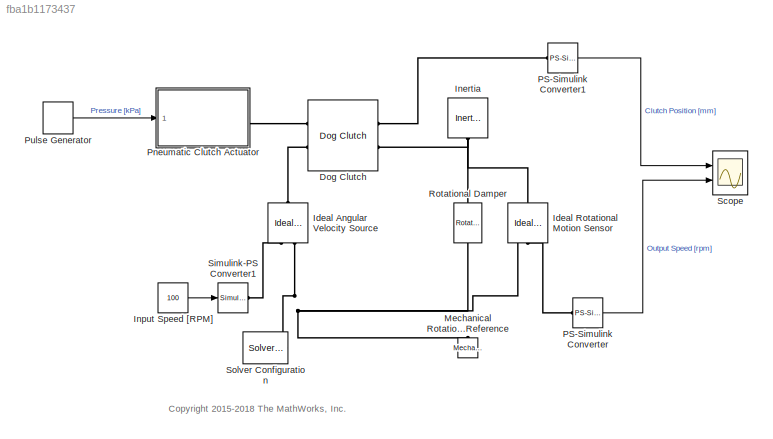
MODEL slx_fba1b1173437
KIND model
CONFIG AbsTol = 1e-3
CONFIG EnableMultiTasking = on
CONFIG FixedStep = auto
CONFIG MaxStep = auto
CONFIG MinStep = auto
CONFIG RelTol = 1e-3
CONFIG SampleTimeConstraint = Unconstrained
CONFIG Solver = ode23t
CONFIG SolverName = ode23t
CONFIG StartTime = 0.0
CONFIG StopTime = 10.0
BLOCK [Reference] Dog Clutch  REF=sdl_lib/Clutches/Dog Clutch
  Ports = [0, 0, 0, 0, 0, 2, 2]
  SourceBlock = sdl_lib/Clutches/Dog Clutch
  SourceProductBaseCode = LD
  SourceProductName = Simscape Driveline
  SourceType = Dog Clutch
BLOCK [Reference] Ideal Angular Velocity Source  REF=fl_lib/Mechanical/Mechanical Sources/Ideal Angular
Velocity Source
  Ports = [0, 0, 0, 0, 0, 1, 2]
  SourceBlock = fl_lib/Mechanical/Mechanical Sources/Ideal Angular\nVelocity Source
  SourceProductBaseCode = SS
  SourceProductName = Simscape
  SourceType = Ideal Angular\nVelocity Source
BLOCK [Reference] Ideal Rotational Motion Sensor  REF=fl_lib/Mechanical/Mechanical Sensors/Ideal Rotational
Motion Sensor
  Ports = [0, 0, 0, 0, 0, 1, 3]
  SourceBlock = fl_lib/Mechanical/Mechanical Sensors/Ideal Rotational\nMotion Sensor
  SourceProductBaseCode = SS
  SourceProductName = Simscape
  SourceType = Ideal Rotational\nMotion Sensor
BLOCK [Reference] Inertia  REF=fl_lib/Mechanical/Rotational Elements/Inertia
  Ports = [0, 0, 0, 0, 0, 1]
  SourceBlock = fl_lib/Mechanical/Rotational Elements/Inertia
  SourceProductBaseCode = SS
  SourceProductName = Simscape
  SourceType = Inertia
BLOCK [Constant] Input Speed [RPM]
  Value = 100
BLOCK [Reference] Mechanical Rotational Reference  REF=fl_lib/Mechanical/Rotational Elements/Mechanical
Rotational Reference
  Ports = [0, 0, 0, 0, 0, 1]
  SourceBlock = fl_lib/Mechanical/Rotational Elements/Mechanical\nRotational Reference
  SourceProductBaseCode = SS
  SourceProductName = Simscape
  SourceType = Mechanical\nRotational Reference
BLOCK [Reference] PS-Simulink Converter  REF=nesl_utility/PS-Simulink
Converter
  Ports = [0, 1, 0, 0, 0, 1]
  SourceBlock = nesl_utility/PS-Simulink\nConverter
  SourceProductBaseCode = SS
  SourceProductName = Simscape
  SourceType = PS-Simulink\nConverter
BLOCK [Reference] PS-Simulink Converter1  REF=nesl_utility/PS-Simulink
Converter
  Ports = [0, 1, 0, 0, 0, 1]
  SourceBlock = nesl_utility/PS-Simulink\nConverter
  SourceProductBaseCode = SS
  SourceProductName = Simscape
  SourceType = PS-Simulink\nConverter
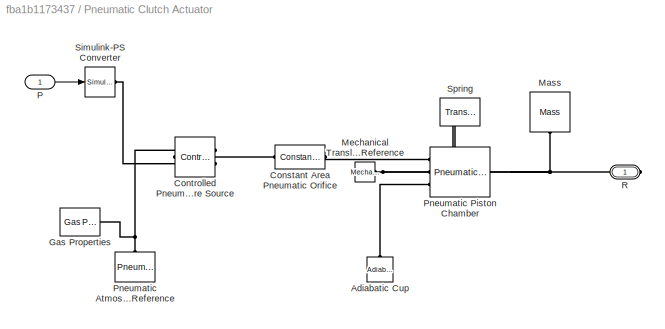
BLOCK [SubSystem] Pneumatic Clutch Actuator
  Ports = [1, 0, 0, 0, 0, 0, 1]
  RequestExecContextInheritance = off
  Variant = off
BLOCK [Reference] Pneumatic Clutch Actuator/Adiabatic Cup  REF=Pneumatic_lib/Pneumatic Elements/Adiabatic Cup
  Ports = [0, 0, 0, 0, 0, 1]
  SourceBlock = Pneumatic_lib/Pneumatic Elements/Adiabatic Cup
  SourceType = Adiabatic Cup
BLOCK [Reference] Pneumatic Clutch Actuator/Constant Area Pneumatic Orifice  REF=Pneumatic_lib/Pneumatic Elements/Constant Area
Pneumatic Orifice
  Ports = [0, 0, 0, 0, 0, 1, 1]
  SourceBlock = Pneumatic_lib/Pneumatic Elements/Constant Area\nPneumatic Orifice
  SourceType = Constant Area\nPneumatic Orifice
BLOCK [Reference] Pneumatic Clutch Actuator/Controlled Pneumatic Pressure Source  REF=Pneumatic_lib/Pneumatic Sources/Controlled Pneumatic
Pressure Source
  Ports = [0, 0, 0, 0, 0, 1, 2]
  SourceBlock = Pneumatic_lib/Pneumatic Sources/Controlled Pneumatic\nPressure Source
  SourceType = Controlled Pneumatic\nPressure Source
BLOCK [Reference] Pneumatic Clutch Actuator/Gas Properties  REF=Pneumatic_lib/Pneumatic Utilities/Gas Properties
  Ports = [0, 0, 0, 0, 0, 0, 1]
  SourceBlock = Pneumatic_lib/Pneumatic Utilities/Gas Properties
  SourceType = Gas Properties
BLOCK [Reference] Pneumatic Clutch Actuator/Mass  REF=fl_lib/Mechanical/Translational
Elements/Mass
  Ports = [0, 0, 0, 0, 0, 1]
  SourceBlock = fl_lib/Mechanical/Translational\nElements/Mass
  SourceProductBaseCode = SS
  SourceProductName = Simscape
  SourceType = Mass
BLOCK [Reference] Pneumatic Clutch Actuator/Mechanical Translational Reference  REF=fl_lib/Mechanical/Translational
Elements/Mechanical
Translational
Reference
  Ports = [0, 0, 0, 0, 0, 1]
  SourceBlock = fl_lib/Mechanical/Translational\nElements/Mechanical\nTranslational\nReference
  SourceProductBaseCode = SS
  SourceProductName = Simscape
  SourceType = Mechanical\nTranslational\nReference
BLOCK [Inport] Pneumatic Clutch Actuator/P
  IconDisplay = Port number
BLOCK [Reference] Pneumatic Clutch Actuator/Pneumatic Atmospheric Reference  REF=Pneumatic_lib/Pneumatic Elements/Pneumatic
Atmospheric
Reference
  Ports = [0, 0, 0, 0, 0, 1]
  SourceBlock = Pneumatic_lib/Pneumatic Elements/Pneumatic\nAtmospheric\nReference
  SourceType = Pneumatic\nAtmospheric\nReference
BLOCK [Reference] Pneumatic Clutch Actuator/Pneumatic Piston Chamber  REF=Pneumatic_lib/Pneumatic Elements/Pneumatic Piston
Chamber
  Ports = [0, 0, 0, 0, 0, 3, 1]
  SourceBlock = Pneumatic_lib/Pneumatic Elements/Pneumatic Piston\nChamber
  SourceType = Pneumatic Piston\nChamber
BLOCK [PMIOPort] Pneumatic Clutch Actuator/R
  Port = 1
  Side = Right
BLOCK [Reference] Pneumatic Clutch Actuator/Simulink-PS Converter  REF=nesl_utility/Simulink-PS
Converter
  Ports = [1, 0, 0, 0, 0, 0, 1]
  SourceBlock = nesl_utility/Simulink-PS\nConverter
  SourceProductBaseCode = SS
  SourceProductName = Simscape
  SourceType = Simulink-PS\nConverter
BLOCK [Reference] Pneumatic Clutch Actuator/Spring  REF=fl_lib/Mechanical/Translational
Elements/Translational Spring
  Ports = [0, 0, 0, 0, 0, 1, 1]
  SourceBlock = fl_lib/Mechanical/Translational\nElements/Translational Spring
  SourceProductBaseCode = SS
  SourceProductName = Simscape
  SourceType = Translational Spring
BLOCK [DiscretePulseGenerator] Pulse Generator
  Period = 3
  Ports = [0, 1]
  PulseType = Time based
  PulseWidth = 50
BLOCK [Reference] Rotational Damper  REF=fl_lib/Mechanical/Rotational Elements/Rotational Damper
  Ports = [0, 0, 0, 0, 0, 1, 1]
  SourceBlock = fl_lib/Mechanical/Rotational Elements/Rotational Damper
  SourceProductBaseCode = SS
  SourceProductName = Simscape
  SourceType = Rotational Damper
BLOCK [Scope] Scope
  NumInputPorts = 2
  Ports = [2]
  ScopeSpecificationString = Simulink.scopes.TimeScopeBlockCfg('CurrentConfiguration', extmgr.ConfigurationSet(extmgr.Configuration('Core','General UI',true),extmgr.Configuration('Core','Source UI',true),extmgr.Configuration('Sources','WiredSimulink',true,'DataLoggingVariableName','ScopeData1','DataLoggingLimitDataPoints',true,'DataLoggingSaveFormat','Array','DataLoggingDecimation','1','DataLoggingDecimateData',true),extmgr.C...<+2414ch>
BLOCK [Reference] Simulink-PS Converter1  REF=nesl_utility/Simulink-PS
Converter
  Ports = [1, 0, 0, 0, 0, 0, 1]
  SourceBlock = nesl_utility/Simulink-PS\nConverter
  SourceProductBaseCode = SS
  SourceProductName = Simscape
  SourceType = Simulink-PS\nConverter
BLOCK [Reference] Solver Configuration  REF=nesl_utility/Solver
Configuration
  Ports = [0, 0, 0, 0, 0, 0, 1]
  SourceBlock = nesl_utility/Solver\nConfiguration
  SourceProductBaseCode = SS
  SourceProductName = Simscape
  SourceType = Solver\nConfiguration
ANNOTATION (root): <copyright redacted>
LINE Input Speed [RPM]:1 -> Simulink-PS Converter1:1
LINE PS-Simulink Converter1:1 -> Scope:1
LINE PS-Simulink Converter:1 -> Scope:2
LINE Pneumatic Clutch Actuator/P:1 -> Pneumatic Clutch Actuator/Simulink-PS Converter:1
LINE Pulse Generator:1 -> Pneumatic Clutch Actuator:1
PLINE Dog Clutch:LConn1 -- Pneumatic Clutch Actuator:RConn1
PLINE Dog Clutch:LConn2 -- Ideal Angular Velocity Source:LConn1
PLINE Dog Clutch:RConn1 -- PS-Simulink Converter1:LConn1
PNET net1: Dog Clutch:RConn2 -- Ideal Rotational Motion Sensor:LConn1 -- Inertia:LConn1 -- Rotational Damper:LConn1
PLINE Ideal Angular Velocity Source:RConn1 -- Simulink-PS Converter1:RConn1
PNET net2: Ideal Angular Velocity Source:RConn2 -- Ideal Rotational Motion Sensor:RConn1 -- Mechanical Rotational Reference:LConn1 -- Rotational Damper:RConn1 -- Solver Configuration:RConn1
PLINE Ideal Rotational Motion Sensor:RConn2 -- PS-Simulink Converter:LConn1
PLINE Pneumatic Clutch Actuator/Adiabatic Cup:LConn1 -- Pneumatic Clutch Actuator/Pneumatic Piston Chamber:LConn3
PLINE Pneumatic Clutch Actuator/Constant Area Pneumatic Orifice:LConn1 -- Pneumatic Clutch Actuator/Controlled Pneumatic Pressure Source:LConn1
PLINE Pneumatic Clutch Actuator/Constant Area Pneumatic Orifice:RConn1 -- Pneumatic Clutch Actuator/Pneumatic Piston Chamber:LConn1
PNET net3: Pneumatic Clutch Actuator/Controlled Pneumatic Pressure Source:RConn1 -- Pneumatic Clutch Actuator/Gas Properties:RConn1 -- Pneumatic Clutch Actuator/Pneumatic Atmospheric Reference:LConn1
PLINE Pneumatic Clutch Actuator/Controlled Pneumatic Pressure Source:RConn2 -- Pneumatic Clutch Actuator/Simulink-PS Converter:RConn1
PNET net4: Pneumatic Clutch Actuator/Mass:LConn1 -- Pneumatic Clutch Actuator/Pneumatic Piston Chamber:RConn1 -- Pneumatic Clutch Actuator/R:RConn1 -- Pneumatic Clutch Actuator/Spring:LConn1
PNET net5: Pneumatic Clutch Actuator/Mechanical Translational Reference:LConn1 -- Pneumatic Clutch Actuator/Pneumatic Piston Chamber:LConn2 -- Pneumatic Clutch Actuator/Spring:RConn1
note: PNET lines group multi-terminal physical nets as a canonical sorted terminal list (undirected conserving connections); 2-terminal nets keep the pairwise PLINE form
